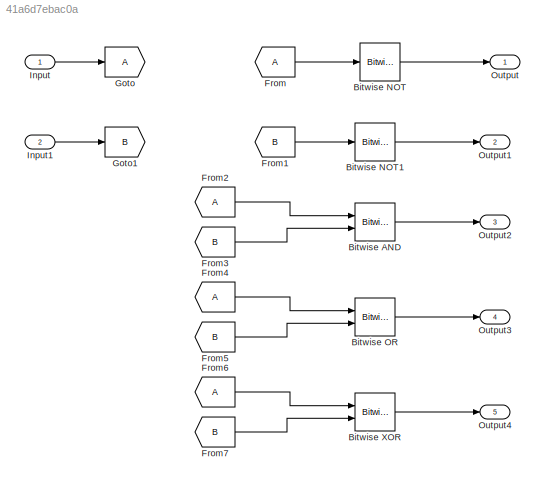
MODEL slx_41a6d7ebac0a
KIND model
CONFIG AbsTol = auto
CONFIG EnableMultiTasking = off
CONFIG FixedStep = auto
CONFIG MaxStep = auto
CONFIG MinStep = auto
CONFIG RelTol = 1e-3
CONFIG SampleTimeConstraint = Unconstrained
CONFIG SolverName = VariableStepAuto
CONFIG StartTime = 0.0
CONFIG StopTime = 10.0
BLOCK [Reference] Bitwise AND  REF=simulink/Logic and Bit
Operations/Bitwise
Operator
  Ports = [2, 1]
  SourceBlock = simulink/Logic and Bit\nOperations/Bitwise\nOperator
  SourceProductBaseCode = SL
  SourceType = Bitwise Operator
BLOCK [Reference] Bitwise NOT  REF=simulink/Logic and Bit
Operations/Bitwise
Operator
  Ports = [1, 1]
  SourceBlock = simulink/Logic and Bit\nOperations/Bitwise\nOperator
  SourceProductBaseCode = SL
  SourceType = Bitwise Operator
BLOCK [Reference] Bitwise NOT1  REF=simulink/Logic and Bit
Operations/Bitwise
Operator
  Ports = [1, 1]
  SourceBlock = simulink/Logic and Bit\nOperations/Bitwise\nOperator
  SourceProductBaseCode = SL
  SourceType = Bitwise Operator
BLOCK [Reference] Bitwise OR  REF=simulink/Logic and Bit
Operations/Bitwise
Operator
  Ports = [2, 1]
  SourceBlock = simulink/Logic and Bit\nOperations/Bitwise\nOperator
  SourceProductBaseCode = SL
  SourceType = Bitwise Operator
BLOCK [Reference] Bitwise XOR  REF=simulink/Logic and Bit
Operations/Bitwise
Operator
  Ports = [2, 1]
  SourceBlock = simulink/Logic and Bit\nOperations/Bitwise\nOperator
  SourceProductBaseCode = SL
  SourceType = Bitwise Operator
BLOCK [From] From
BLOCK [From] From1
  GotoTag = B
BLOCK [From] From2
BLOCK [From] From3
  GotoTag = B
BLOCK [From] From4
BLOCK [From] From5
  GotoTag = B
BLOCK [From] From6
BLOCK [From] From7
  GotoTag = B
BLOCK [Goto] Goto
BLOCK [Goto] Goto1
  GotoTag = B
BLOCK [Inport] Input
  OutDataTypeStr = uint8
BLOCK [Inport] Input1
  OutDataTypeStr = uint8
  Port = 2
BLOCK [Outport] Output
BLOCK [Outport] Output1
  Port = 2
BLOCK [Outport] Output2
  Port = 3
BLOCK [Outport] Output3
  Port = 4
BLOCK [Outport] Output4
  Port = 5
LINE Bitwise AND:1 -> Output2:1
LINE Bitwise NOT1:1 -> Output1:1
LINE Bitwise NOT:1 -> Output:1
LINE Bitwise OR:1 -> Output3:1
LINE Bitwise XOR:1 -> Output4:1
LINE From1:1 -> Bitwise NOT1:1
LINE From2:1 -> Bitwise AND:1
LINE From3:1 -> Bitwise AND:2
LINE From4:1 -> Bitwise OR:1
LINE From5:1 -> Bitwise OR:2
LINE From6:1 -> Bitwise XOR:1
LINE From7:1 -> Bitwise XOR:2
LINE From:1 -> Bitwise NOT:1
LINE Input1:1 -> Goto1:1
LINE Input:1 -> Goto:1
